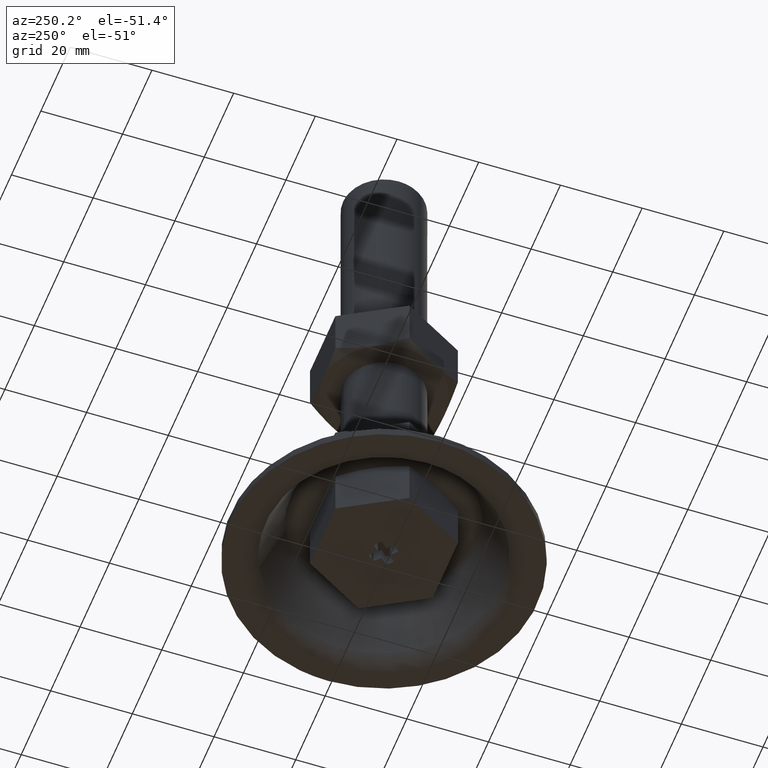
[diagram: clean part render]
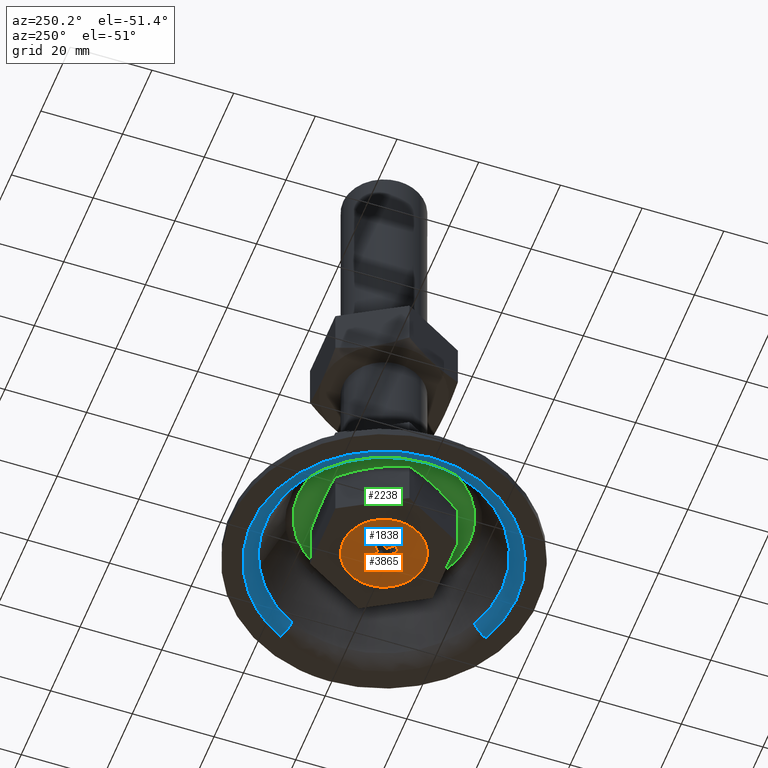
[diagram: same view with three faces highlighted in distinct colors, each labeled with its STEP entity id]
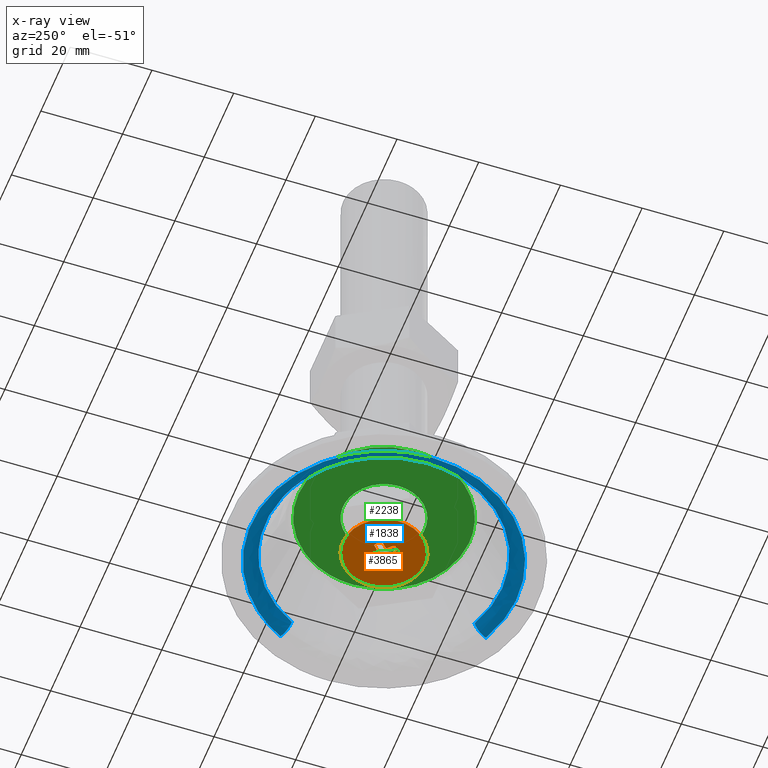
[diagram: x-ray of the same camera — body ghosted, the three highlighted faces saturated]
A machine part, auxiliary view with three faces highlighted in distinct colors.
The next image is the same camera in x-ray (body ghosted, the three faces saturated) — at least one of them is partly hidden behind the body in this view.
Their STEP definitions:

[orange] entity #3865 — the highlighted face is a freeform B-spline surface patch.
#2368=CARTESIAN_POINT('',(-0.087265355132907,-9.999619230640409,3.000000000000226));
#2369=VERTEX_POINT('',#2368);
#2375=CARTESIAN_POINT('',(10.0,0.0,3.000000000000225));
#2376=VERTEX_POINT('',#2375);
#2377=CARTESIAN_POINT('',(-0.087265355132907,-9.999619230640409,3.000000000000225));
#2378=CARTESIAN_POINT('',(-0.043633508356192,-9.999999999999998,3.000000000000226));
#2379=CARTESIAN_POINT('',(0.0,-10.0,3.000000000000225));
#2380=CARTESIAN_POINT('',(10.000000000000002,-10.000000000000002,3.000000000000225));
#2381=CARTESIAN_POINT('',(10.0,0.0,3.000000000000225));
#2389=(BOUNDED_CURVE()B_SPLINE_CURVE(2,(#2377,#2378,#2379,#2380,#2381),.UNSPECIFIED.,.F.,.U.)B_SPLINE_CURVE_WITH_KNOTS((3,2,3),(0.248460105659758,0.250000000000000,0.500000000000000),.UNSPECIFIED.)CURVE()GEOMETRIC_REPRESENTATION_ITEM()RATIONAL_B_SPLINE_CURVE((0.996414028088244,0.998195901560215,1.0,0.707106781186548,1.0))REPRESENTATION_ITEM(''));
#2390=EDGE_CURVE('',#2369,#2376,#2389,.T.);
#2392=CARTESIAN_POINT('',(1.241280020918305,9.922662138240373,3.000000000000226));
#2393=VERTEX_POINT('',#2392);
#2394=CARTESIAN_POINT('',(10.0,0.0,3.000000000000225));
#2395=CARTESIAN_POINT('',(10.0,8.826986001287088,3.000000000000225));
#2396=CARTESIAN_POINT('',(1.241280020918305,9.922662138240373,3.000000000000225));
#2404=(BOUNDED_CURVE()B_SPLINE_CURVE(2,(#2394,#2395,#2396),.UNSPECIFIED.,.F.,.U.)B_SPLINE_CURVE_WITH_KNOTS((3,3),(0.500000000000000,0.728526071025219),.UNSPECIFIED.)CURVE()GEOMETRIC_REPRESENTATION_ITEM()RATIONAL_B_SPLINE_CURVE((1.0,0.732265053898528,0.954005430266801))REPRESENTATION_ITEM(''));
#2405=EDGE_CURVE('',#2376,#2393,#2404,.T.);
#2455=CARTESIAN_POINT('',(-10.0,0.0,3.000000000000225));
#2456=VERTEX_POINT('',#2455);
#2457=CARTESIAN_POINT('',(1.241280020918304,9.922662138240373,3.000000000000226));
#2458=CARTESIAN_POINT('',(0.623049275456359,10.0,3.000000000000225));
#2459=CARTESIAN_POINT('',(0.0,10.0,3.000000000000225));
#2460=CARTESIAN_POINT('',(-10.000000000000002,10.000000000000002,3.000000000000225));
#2461=CARTESIAN_POINT('',(-10.0,0.0,3.000000000000225));
#2469=(BOUNDED_CURVE()B_SPLINE_CURVE(2,(#2457,#2458,#2459,#2460,#2461),.UNSPECIFIED.,.F.,.U.)B_SPLINE_CURVE_WITH_KNOTS((3,2,3),(0.728526071025219,0.750000000000000,1.0),.UNSPECIFIED.)CURVE()GEOMETRIC_REPRESENTATION_ITEM()RATIONAL_B_SPLINE_CURVE((0.954005430266802,0.974841727288020,1.0,0.707106781186548,1.0))REPRESENTATION_ITEM(''));
#2470=EDGE_CURVE('',#2393,#2456,#2469,.T.);
#2472=CARTESIAN_POINT('',(-10.0,0.0,3.000000000000225));
#2473=CARTESIAN_POINT('',(-10.000000000000002,-9.913112105654022,3.000000000000225));
#2474=CARTESIAN_POINT('',(-0.087265355132907,-9.999619230640409,3.000000000000226));
#2482=(BOUNDED_CURVE()B_SPLINE_CURVE(2,(#2472,#2473,#2474),.UNSPECIFIED.,.F.,.U.)B_SPLINE_CURVE_WITH_KNOTS((3,3),(0.0,0.248460105659758),.UNSPECIFIED.)CURVE()GEOMETRIC_REPRESENTATION_ITEM()RATIONAL_B_SPLINE_CURVE((1.0,0.708910879626332,0.996414028088244))REPRESENTATION_ITEM(''));
#2483=EDGE_CURVE('',#2456,#2369,#2482,.T.);
#3320=CARTESIAN_POINT('',(-1.502621668755090,-2.938048352322960,3.000000000000225));
#3321=VERTEX_POINT('',#3320);
#3322=CARTESIAN_POINT('',(-2.938048381164870,-1.502621612361035,3.000000000000225));
#3323=VERTEX_POINT('',#3322);
#3324=CARTESIAN_POINT('',(-1.502621668755093,-2.938048352322960,3.000000000000225));
#3325=CARTESIAN_POINT('',(-2.452332663000536,-2.452332615929498,3.000000000000225));
#3326=CARTESIAN_POINT('',(-2.938048381164871,-1.502621612361036,3.000000000000225));
#3334=(BOUNDED_CURVE()B_SPLINE_CURVE(2,(#3324,#3325,#3326),.UNSPECIFIED.,.F.,.U.)CURVE()GEOMETRIC_REPRESENTATION_ITEM()QUASI_UNIFORM_CURVE()RATIONAL_B_SPLINE_CURVE((1.0,0.951523598537862,1.0))REPRESENTATION_ITEM(''));
#3335=EDGE_CURVE('',#3321,#3323,#3334,.T.);
#3356=CARTESIAN_POINT('',(-0.031022999999990,-1.516942000000030,3.000000000000225));
#3357=VERTEX_POINT('',#3356);
#3358=CARTESIAN_POINT('',(-0.031022999999990,-1.516942000000030,3.000000000000225));
#3359=CARTESIAN_POINT('',(-1.502621668755090,-2.938048352322960,3.000000000000225));
#3360=QUASI_UNIFORM_CURVE('',1,(#3358,#3359),.UNSPECIFIED.,.F.,.U.);
#3361=EDGE_CURVE('',#3357,#3321,#3360,.T.);
#3378=CARTESIAN_POINT('',(0.0,-1.507457000000030,3.000000000000225));
#3379=VERTEX_POINT('',#3378);
#3380=CARTESIAN_POINT('',(0.0,-1.507457000000030,3.000000000000225));
#3381=CARTESIAN_POINT('',(-0.031022999999990,-1.516942000000030,3.000000000000225));
#3382=QUASI_UNIFORM_CURVE('',1,(#3380,#3381),.UNSPECIFIED.,.F.,.U.);
#3383=EDGE_CURVE('',#3379,#3357,#3382,.T.);
#3400=CARTESIAN_POINT('',(0.031023000000019,-1.516942000000030,3.000000000000225));
#3401=VERTEX_POINT('',#3400);
#3402=CARTESIAN_POINT('',(0.031023000000019,-1.516942000000030,3.000000000000225));
#3403=CARTESIAN_POINT('',(0.0,-1.507457000000030,3.000000000000225));
#3404=QUASI_UNIFORM_CURVE('',1,(#3402,#3403),.UNSPECIFIED.,.F.,.U.);
#3405=EDGE_CURVE('',#3401,#3379,#3404,.T.);
#3422=CARTESIAN_POINT('',(1.502621612361030,-2.938048381164870,3.000000000000225));
#3423=VERTEX_POINT('',#3422);
#3424=CARTESIAN_POINT('',(1.502621612361030,-2.938048381164870,3.000000000000225));
#3425=CARTESIAN_POINT('',(0.031023000000019,-1.516942000000030,3.000000000000225));
#3426=QUASI_UNIFORM_CURVE('',1,(#3424,#3425),.UNSPECIFIED.,.F.,.U.);
#3427=EDGE_CURVE('',#3423,#3401,#3426,.T.);
#3453=CARTESIAN_POINT('',(2.938048000000000,-1.502622000000000,3.000000000000225));
#3454=VERTEX_POINT('',#3453);
#3455=CARTESIAN_POINT('',(2.938048000000000,-1.502622000000000,3.000000000000225));
#3456=CARTESIAN_POINT('',(2.452332392051403,-2.452332777499696,3.000000000000225));
#3457=CARTESIAN_POINT('',(1.502621612361031,-2.938048381164874,3.000000000000225));
#3465=(BOUNDED_CURVE()B_SPLINE_CURVE(2,(#3455,#3456,#3457),.UNSPECIFIED.,.F.,.U.)CURVE()GEOMETRIC_REPRESENTATION_ITEM()QUASI_UNIFORM_CURVE()RATIONAL_B_SPLINE_CURVE((1.0,0.951523619757787,1.0))REPRESENTATION_ITEM(''));
#3466=EDGE_CURVE('',#3454,#3423,#3465,.T.);
#3483=CARTESIAN_POINT('',(1.516942000000000,-0.031022999999990,3.000000000000225));
#3484=VERTEX_POINT('',#3483);
#3485=CARTESIAN_POINT('',(1.516942000000000,-0.031022999999990,3.000000000000225));
#3486=CARTESIAN_POINT('',(2.938048000000000,-1.502622000000000,3.000000000000225));
#3487=QUASI_UNIFORM_CURVE('',1,(#3485,#3486),.UNSPECIFIED.,.F.,.U.);
#3488=EDGE_CURVE('',#3484,#3454,#3487,.T.);
#3505=CARTESIAN_POINT('',(1.507457000000000,0.0,3.000000000000225));
#3506=VERTEX_POINT('',#3505);
#3507=CARTESIAN_POINT('',(1.507457000000000,0.0,3.000000000000225));
#3508=CARTESIAN_POINT('',(1.516942000000000,-0.031022999999990,3.000000000000225));
#3509=QUASI_UNIFORM_CURVE('',1,(#3507,#3508),.UNSPECIFIED.,.F.,.U.);
#3510=EDGE_CURVE('',#3506,#3484,#3509,.T.);
#3527=CARTESIAN_POINT('',(1.516942000000000,0.031023000000019,3.000000000000225));
#3528=VERTEX_POINT('',#3527);
#3529=CARTESIAN_POINT('',(1.516942000000000,0.031023000000019,3.000000000000225));
#3530=CARTESIAN_POINT('',(1.507457000000000,0.0,3.000000000000225));
#3531=QUASI_UNIFORM_CURVE('',1,(#3529,#3530),.UNSPECIFIED.,.F.,.U.);
#3532=EDGE_CURVE('',#3528,#3506,#3531,.T.);
#3549=CARTESIAN_POINT('',(2.938048381164870,1.502621612361035,3.000000000000225));
#3550=VERTEX_POINT('',#3549);
#3551=CARTESIAN_POINT('',(2.938048381164870,1.502621612361035,3.000000000000225));
#3552=CARTESIAN_POINT('',(1.516942000000000,0.031023000000019,3.000000000000225));
#3553=QUASI_UNIFORM_CURVE('',1,(#3551,#3552),.UNSPECIFIED.,.F.,.U.);
#3554=EDGE_CURVE('',#3550,#3528,#3553,.T.);
#3580=CARTESIAN_POINT('',(1.502622000000000,2.938048000000000,3.000000000000225));
#3581=VERTEX_POINT('',#3580);
#3582=CARTESIAN_POINT('',(1.502622000000000,2.938048000000000,3.000000000000225));
#3583=CARTESIAN_POINT('',(2.452332777499692,2.452332392051405,3.000000000000225));
#3584=CARTESIAN_POINT('',(2.938048381164871,1.502621612361037,3.000000000000225));
#3592=(BOUNDED_CURVE()B_SPLINE_CURVE(2,(#3582,#3583,#3584),.UNSPECIFIED.,.F.,.U.)CURVE()GEOMETRIC_REPRESENTATION_ITEM()QUASI_UNIFORM_CURVE()RATIONAL_B_SPLINE_CURVE((1.0,0.951523619757787,1.0))REPRESENTATION_ITEM(''));
#3593=EDGE_CURVE('',#3581,#3550,#3592,.T.);
#3610=CARTESIAN_POINT('',(0.031023000000019,1.516942000000000,3.000000000000225));
#3611=VERTEX_POINT('',#3610);
#3612=CARTESIAN_POINT('',(0.031023000000019,1.516942000000000,3.000000000000225));
#3613=CARTESIAN_POINT('',(1.502622000000000,2.938048000000000,3.000000000000225));
#3614=QUASI_UNIFORM_CURVE('',1,(#3612,#3613),.UNSPECIFIED.,.F.,.U.);
#3615=EDGE_CURVE('',#3611,#3581,#3614,.T.);
#3632=CARTESIAN_POINT('',(0.0,1.507457000000000,3.000000000000225));
#3633=VERTEX_POINT('',#3632);
#3634=CARTESIAN_POINT('',(0.0,1.507457000000000,3.000000000000225));
#3635=CARTESIAN_POINT('',(0.031023000000019,1.516942000000000,3.000000000000225));
#3636=QUASI_UNIFORM_CURVE('',1,(#3634,#3635),.UNSPECIFIED.,.F.,.U.);
#3637=EDGE_CURVE('',#3633,#3611,#3636,.T.);
#3654=CARTESIAN_POINT('',(-0.031022999999990,1.516942000000000,3.000000000000225));
#3655=VERTEX_POINT('',#3654);
#3656=CARTESIAN_POINT('',(-0.031022999999990,1.516942000000000,3.000000000000225));
#3657=CARTESIAN_POINT('',(0.0,1.507457000000000,3.000000000000225));
#3658=QUASI_UNIFORM_CURVE('',1,(#3656,#3657),.UNSPECIFIED.,.F.,.U.);
#3659=EDGE_CURVE('',#3655,#3633,#3658,.T.);
#3676=CARTESIAN_POINT('',(-1.502621612361035,2.938048381164870,3.000000000000225));
#3677=VERTEX_POINT('',#3676);
#3678=CARTESIAN_POINT('',(-1.502621612361035,2.938048381164870,3.000000000000225));
#3679=CARTESIAN_POINT('',(-0.031022999999990,1.516942000000000,3.000000000000225));
#3680=QUASI_UNIFORM_CURVE('',1,(#3678,#3679),.UNSPECIFIED.,.F.,.U.);
#3681=EDGE_CURVE('',#3677,#3655,#3680,.T.);
#3707=CARTESIAN_POINT('',(-2.938048000000000,1.502621000000000,3.000000000000225));
#3708=VERTEX_POINT('',#3707);
#3709=CARTESIAN_POINT('',(-2.938048000000000,1.502621000000000,3.000000000000225));
#3710=CARTESIAN_POINT('',(-2.452332829796139,2.452332553621589,3.000000000000226));
#3711=CARTESIAN_POINT('',(-1.502621612361037,2.938048381164871,3.000000000000225));
#3719=(BOUNDED_CURVE()B_SPLINE_CURVE(2,(#3709,#3710,#3711),.UNSPECIFIED.,.F.,.U.)CURVE()GEOMETRIC_REPRESENTATION_ITEM()QUASI_UNIFORM_CURVE()RATIONAL_B_SPLINE_CURVE((1.0,0.951523578266854,1.0))REPRESENTATION_ITEM(''));
#3720=EDGE_CURVE('',#3708,#3677,#3719,.T.);
#3737=CARTESIAN_POINT('',(-1.516942000000000,0.031023000000019,3.000000000000225));
#3738=VERTEX_POINT('',#3737);
#3739=CARTESIAN_POINT('',(-1.516942000000000,0.031023000000019,3.000000000000225));
#3740=CARTESIAN_POINT('',(-2.938048000000000,1.502621000000000,3.000000000000225));
#3741=QUASI_UNIFORM_CURVE('',1,(#3739,#3740),.UNSPECIFIED.,.F.,.U.);
#3742=EDGE_CURVE('',#3738,#3708,#3741,.T.);
#3759=CARTESIAN_POINT('',(-1.507457000000000,0.0,3.000000000000225));
#3760=VERTEX_POINT('',#3759);
#3761=CARTESIAN_POINT('',(-1.507457000000000,0.0,3.000000000000225));
#3762=CARTESIAN_POINT('',(-1.516942000000000,0.031023000000019,3.000000000000225));
#3763=QUASI_UNIFORM_CURVE('',1,(#3761,#3762),.UNSPECIFIED.,.F.,.U.);
#3764=EDGE_CURVE('',#3760,#3738,#3763,.T.);
#3781=CARTESIAN_POINT('',(-1.516942000000000,-0.031022999999990,3.000000000000225));
#3782=VERTEX_POINT('',#3781);
#3783=CARTESIAN_POINT('',(-1.516942000000000,-0.031022999999990,3.000000000000225));
#3784=CARTESIAN_POINT('',(-1.507457000000000,0.0,3.000000000000225));
#3785=QUASI_UNIFORM_CURVE('',1,(#3783,#3784),.UNSPECIFIED.,.F.,.U.);
#3786=EDGE_CURVE('',#3782,#3760,#3785,.T.);
#3803=CARTESIAN_POINT('',(-2.938048381164870,-1.502621612361035,3.000000000000225));
#3804=CARTESIAN_POINT('',(-1.516942000000000,-0.031022999999990,3.000000000000225));
#3805=QUASI_UNIFORM_CURVE('',1,(#3803,#3804),.UNSPECIFIED.,.F.,.U.);
#3806=EDGE_CURVE('',#3323,#3782,#3805,.T.);
#3832=CARTESIAN_POINT('',(-10.998999961236120,10.998295119452409,3.000000000000200));
#3833=CARTESIAN_POINT('',(10.999000497677921,10.998295119452409,3.000000000000200));
#3834=CARTESIAN_POINT('',(-10.998999961236120,-10.998568347144060,3.000000000000200));
#3835=CARTESIAN_POINT('',(10.999000497677921,-10.998568347144060,3.000000000000200));
#3836=B_SPLINE_SURFACE_WITH_KNOTS('',1,1,((#3832,#3834),(#3833,#3835)),.UNSPECIFIED.,.F.,.F.,.U.,(2,2),(2,2),(0.0,21.998000458914039),(0.0,21.996863466596469),.UNSPECIFIED.);
#3837=ORIENTED_EDGE('',*,*,#2470,.F.);
#3838=ORIENTED_EDGE('',*,*,#2405,.F.);
#3839=ORIENTED_EDGE('',*,*,#2390,.F.);
#3840=ORIENTED_EDGE('',*,*,#2483,.F.);
#3841=EDGE_LOOP('',(#3837,#3838,#3839,#3840));
#3842=FACE_OUTER_BOUND('',#3841,.T.);
#3843=ORIENTED_EDGE('',*,*,#3786,.F.);
#3844=ORIENTED_EDGE('',*,*,#3806,.F.);
#3845=ORIENTED_EDGE('',*,*,#3335,.F.);
#3846=ORIENTED_EDGE('',*,*,#3361,.F.);
#3847=ORIENTED_EDGE('',*,*,#3383,.F.);
#3848=ORIENTED_EDGE('',*,*,#3405,.F.);
#3849=ORIENTED_EDGE('',*,*,#3427,.F.);
#3850=ORIENTED_EDGE('',*,*,#3466,.F.);
#3851=ORIENTED_EDGE('',*,*,#3488,.F.);
#3852=ORIENTED_EDGE('',*,*,#3510,.F.);
#3853=ORIENTED_EDGE('',*,*,#3532,.F.);
#3854=ORIENTED_EDGE('',*,*,#3554,.F.);
#3855=ORIENTED_EDGE('',*,*,#3593,.F.);
#3856=ORIENTED_EDGE('',*,*,#3615,.F.);
#3857=ORIENTED_EDGE('',*,*,#3637,.F.);
#3858=ORIENTED_EDGE('',*,*,#3659,.F.);
#3859=ORIENTED_EDGE('',*,*,#3681,.F.);
#3860=ORIENTED_EDGE('',*,*,#3720,.F.);
#3861=ORIENTED_EDGE('',*,*,#3742,.F.);
#3862=ORIENTED_EDGE('',*,*,#3764,.F.);
#3863=EDGE_LOOP('',(#3843,#3844,#3845,#3846,#3847,#3848,#3849,#3850,#3851,#3852,#3853,#3854,#3855,#3856,#3857,#3858,#3859,#3860,#3861,#3862));
#3864=FACE_BOUND('',#3863,.T.);
#3865=ADVANCED_FACE('',(#3842,#3864),#3836,.T.);

[blue] entity #1838 — the highlighted face is a freeform B-spline surface patch.
#956=CARTESIAN_POINT('',(12.959905010484240,25.878573955882899,2.237050468494902));
#957=VERTEX_POINT('',#956);
#963=CARTESIAN_POINT('',(25.704757550471040,13.301322007613750,2.237050468226475));
#964=VERTEX_POINT('',#963);
#965=CARTESIAN_POINT('',(12.959905010484238,25.878573955882896,2.237050468494902));
#966=CARTESIAN_POINT('',(21.377962304956984,21.662838456136893,2.237050468408253));
#967=CARTESIAN_POINT('',(25.704757550471037,13.301322007613747,2.237050468226475));
#975=(BOUNDED_CURVE()B_SPLINE_CURVE(2,(#965,#966,#967),.UNSPECIFIED.,.F.,.U.)B_SPLINE_CURVE_WITH_KNOTS((3,3),(0.326127052925136,0.421825371003050),.UNSPECIFIED.)CURVE()GEOMETRIC_REPRESENTATION_ITEM()RATIONAL_B_SPLINE_CURVE((0.875940413897086,0.832104291764649,0.874103860136127))REPRESENTATION_ITEM(''));
#976=EDGE_CURVE('',#957,#964,#975,.T.);
#993=CARTESIAN_POINT('',(11.809436057714841,-26.423416658250780,2.237050467591287));
#994=VERTEX_POINT('',#993);
#1008=CARTESIAN_POINT('',(-28.942351802662198,0.0,2.237050468566510));
#1009=VERTEX_POINT('',#1008);
#1010=CARTESIAN_POINT('',(11.809436057714843,-26.423416658250780,2.237050467591286));
#1011=CARTESIAN_POINT('',(6.173360588563976,-28.942351802662202,2.237050468566510));
#1012=CARTESIAN_POINT('',(0.0,-28.942351802662198,2.237050468566510));
#1013=CARTESIAN_POINT('',(-28.942351802662202,-28.942351802662202,2.237050468566510));
#1014=CARTESIAN_POINT('',(-28.942351802662198,0.0,2.237050468566510));
#1022=(BOUNDED_CURVE()B_SPLINE_CURVE(2,(#1010,#1011,#1012,#1013,#1014),.UNSPECIFIED.,.F.,.U.)B_SPLINE_CURVE_WITH_KNOTS((3,2,3),(0.680709483577362,0.750000000000000,1.0),.UNSPECIFIED.)CURVE()GEOMETRIC_REPRESENTATION_ITEM()RATIONAL_B_SPLINE_CURVE((0.882641638331817,0.918821110446908,1.0,0.707106781186548,1.0))REPRESENTATION_ITEM(''));
#1023=EDGE_CURVE('',#994,#1009,#1022,.T.);
#1025=CARTESIAN_POINT('',(-8.220072037613289,27.750498081360188,2.237050461597667));
#1026=VERTEX_POINT('',#1025);
#1027=CARTESIAN_POINT('',(-28.942351802662198,0.0,2.237050468566510));
#1028=CARTESIAN_POINT('',(-28.942351802662198,21.612279144103162,2.237050468566510));
#1029=CARTESIAN_POINT('',(-8.220072037613289,27.750498081360185,2.237050461597668));
#1037=(BOUNDED_CURVE()B_SPLINE_CURVE(2,(#1027,#1028,#1029),.UNSPECIFIED.,.F.,.U.)B_SPLINE_CURVE_WITH_KNOTS((3,3),(0.0,0.201641516916534),.UNSPECIFIED.)CURVE()GEOMETRIC_REPRESENTATION_ITEM()RATIONAL_B_SPLINE_CURVE((1.0,0.763762268255557,0.908607213166079))REPRESENTATION_ITEM(''));
#1038=EDGE_CURVE('',#1009,#1026,#1037,.T.);
#1140=CARTESIAN_POINT('',(-8.220072037613289,27.750498081360185,2.237050461597668));
#1141=CARTESIAN_POINT('',(-4.196441308146185,28.942351802662206,2.237050468566510));
#1142=CARTESIAN_POINT('',(0.0,28.942351802662198,2.237050468566510));
#1143=CARTESIAN_POINT('',(6.842097701799586,28.942351802662202,2.237050468566509));
#1144=CARTESIAN_POINT('',(12.959905010484237,25.878573955882892,2.237050468494902));
#1152=(BOUNDED_CURVE()B_SPLINE_CURVE(2,(#1140,#1141,#1142,#1143,#1144),.UNSPECIFIED.,.F.,.U.)B_SPLINE_CURVE_WITH_KNOTS((3,2,3),(0.201641516916534,0.250000000000000,0.326127052925136),.UNSPECIFIED.)CURVE()GEOMETRIC_REPRESENTATION_ITEM()RATIONAL_B_SPLINE_CURVE((0.908607213166079,0.943344512930990,1.0,0.910811609719899,0.875940413897086))REPRESENTATION_ITEM(''));
#1153=EDGE_CURVE('',#1026,#957,#1152,.T.);
#1741=CARTESIAN_POINT('',(13.360122058931159,-29.893050781160223,0.005508355514710));
#1742=CARTESIAN_POINT('',(-14.869483275386079,-42.509728005006110,0.005508355514710));
#1743=CARTESIAN_POINT('',(-29.080025218520500,-15.047906157494939,0.005508355514710));
#1744=CARTESIAN_POINT('',(-44.127931376015439,14.032119061025560,0.005508355514710));
#1745=CARTESIAN_POINT('',(-15.047906157494939,29.080025218520500,0.005508355514710));
#1746=CARTESIAN_POINT('',(14.032119061025556,44.127931376015439,0.005508355514710));
#1747=CARTESIAN_POINT('',(29.080025218520500,15.047906157494939,0.005508355514710));
#1748=CARTESIAN_POINT('',(12.221916583652151,-27.346334971092841,-0.141036379579506));
#1749=CARTESIAN_POINT('',(-13.602688914978263,-38.888143939045086,-0.141036379579505));
#1750=CARTESIAN_POINT('',(-26.602574505198223,-13.765911194844453,-0.141036379579506));
#1751=CARTESIAN_POINT('',(-40.368485700042669,12.836663310353774,-0.141036379579506));
#1752=CARTESIAN_POINT('',(-13.765911194844453,26.602574505198223,-0.141036379579506));
#1753=CARTESIAN_POINT('',(12.836663310353773,40.368485700042669,-0.141036379579506));
#1754=CARTESIAN_POINT('',(26.602574505198223,13.765911194844453,-0.141036379579506));
#1755=CARTESIAN_POINT('',(11.773801071749741,-26.343683970298308,2.427354544556524));
#1756=CARTESIAN_POINT('',(-13.103947505260404,-37.462313513112626,2.427354544556523));
#1757=CARTESIAN_POINT('',(-25.627193417401873,-13.261185254386630,2.427354544556523));
#1758=CARTESIAN_POINT('',(-38.888378671788516,12.366008163015243,2.427354544556525));
#1759=CARTESIAN_POINT('',(-13.261185254386630,25.627193417401873,2.427354544556523));
#1760=CARTESIAN_POINT('',(12.366008163015241,38.888378671788516,2.427354544556525));
#1761=CARTESIAN_POINT('',(25.627193417401873,13.261185254386639,2.427354544556523));
#1769=(BOUNDED_SURFACE()B_SPLINE_SURFACE(2,2,((#1741,#1748,#1755),(#1742,#1749,#1756),(#1743,#1750,#1757),(#1744,#1751,#1758),(#1745,#1752,#1759),(#1746,#1753,#1760),(#1747,#1754,#1761)),.UNSPECIFIED.,.F.,.F.,.U.)B_SPLINE_SURFACE_WITH_KNOTS((3,2,2,3),(3,3),(0.0,52.079957855682849,106.329913955352500,160.579870055022100),(0.0,5.033719472252813),.UNSPECIFIED.)GEOMETRIC_REPRESENTATION_ITEM()RATIONAL_B_SPLINE_SURFACE(((0.898933571987331,0.737985855779478,0.901312929656294),(0.661043326759624,0.542688181205107,0.662793020572444),(0.919619680268002,0.754968262264206,0.922053791315759),(0.650269312030109,0.533843177827644,0.651990488458139),(0.919619680268002,0.754968262264206,0.922053791315759),(0.650269312030109,0.533843177827644,0.651990488458139),(0.919619680268002,0.754968262264206,0.922053791315759)))REPRESENTATION_ITEM('')SURFACE());
#1770=ORIENTED_EDGE('',*,*,#1023,.F.);
#1771=CARTESIAN_POINT('',(13.274496828831539,-29.701465753393460,6.272560E-016));
#1772=VERTEX_POINT('',#1771);
#1773=CARTESIAN_POINT('',(13.274496828831541,-29.701465753393460,6.272560E-016));
#1774=CARTESIAN_POINT('',(12.257614232263602,-27.426207865816647,2.246955E-009));
#1775=CARTESIAN_POINT('',(11.809436057714841,-26.423416658250787,2.237050467591287));
#1783=(BOUNDED_CURVE()B_SPLINE_CURVE(2,(#1773,#1774,#1775),.UNSPECIFIED.,.F.,.U.)B_SPLINE_CURVE_WITH_KNOTS((3,3),(-1.645059919364453,-0.344443061153596),.UNSPECIFIED.)CURVE()GEOMETRIC_REPRESENTATION_ITEM()RATIONAL_B_SPLINE_CURVE((0.884983933262238,0.752043508425035,0.887147264431271))REPRESENTATION_ITEM(''));
#1784=EDGE_CURVE('',#1772,#994,#1783,.T.);
#1785=ORIENTED_EDGE('',*,*,#1784,.F.);
#1786=CARTESIAN_POINT('',(-32.532896183340213,0.0,0.0));
#1787=VERTEX_POINT('',#1786);
#1788=CARTESIAN_POINT('',(13.274496828831534,-29.701465753393467,6.272560E-016));
#1789=CARTESIAN_POINT('',(6.939218364190379,-32.532896183340206,0.0));
#1790=CARTESIAN_POINT('',(0.0,-32.532896183340213,0.0));
#1791=CARTESIAN_POINT('',(-32.532896183340213,-32.532896183340213,0.0));
#1792=CARTESIAN_POINT('',(-32.532896183340213,0.0,0.0));
#1800=(BOUNDED_CURVE()B_SPLINE_CURVE(2,(#1788,#1789,#1790,#1791,#1792),.UNSPECIFIED.,.F.,.U.)B_SPLINE_CURVE_WITH_KNOTS((3,2,3),(0.680709483576786,0.750000000000000,1.0),.UNSPECIFIED.)CURVE()GEOMETRIC_REPRESENTATION_ITEM()RATIONAL_B_SPLINE_CURVE((0.882641638331215,0.918821110446234,1.0,0.707106781186547,1.0))REPRESENTATION_ITEM(''));
#1801=EDGE_CURVE('',#1772,#1787,#1800,.T.);
#1802=ORIENTED_EDGE('',*,*,#1801,.T.);
#1803=CARTESIAN_POINT('',(28.893650885626290,14.951463893438650,6.131464E-016));
#1804=VERTEX_POINT('',#1803);
#1805=CARTESIAN_POINT('',(-32.532896183340213,0.0,0.0));
#1806=CARTESIAN_POINT('',(-32.532896183340213,32.532896183340213,0.0));
#1807=CARTESIAN_POINT('',(0.0,32.532896183340213,0.0));
#1808=CARTESIAN_POINT('',(19.795868431308509,32.532896183340206,0.0));
#1809=CARTESIAN_POINT('',(28.893650885626283,14.951463893438650,6.131464E-016));
#1817=(BOUNDED_CURVE()B_SPLINE_CURVE(2,(#1805,#1806,#1807,#1808,#1809),.UNSPECIFIED.,.F.,.U.)B_SPLINE_CURVE_WITH_KNOTS((3,2,3),(0.0,0.250000000000000,0.421825371002993),.UNSPECIFIED.)CURVE()GEOMETRIC_REPRESENTATION_ITEM()RATIONAL_B_SPLINE_CURVE((1.0,0.707106781186547,1.0,0.798694056052471,0.874103860136077))REPRESENTATION_ITEM(''));
#1818=EDGE_CURVE('',#1787,#1804,#1817,.T.);
#1819=ORIENTED_EDGE('',*,*,#1818,.T.);
#1820=CARTESIAN_POINT('',(28.893650885626286,14.951463893438643,6.131464E-016));
#1821=CARTESIAN_POINT('',(26.680275031932048,13.806118527055904,3.588732E-010));
#1822=CARTESIAN_POINT('',(25.704757550471037,13.301322007613747,2.237050468226475));
#1830=(BOUNDED_CURVE()B_SPLINE_CURVE(2,(#1820,#1821,#1822),.UNSPECIFIED.,.F.,.U.)B_SPLINE_CURVE_WITH_KNOTS((3,3),(-1.645059920295007,-0.344443060717956),.UNSPECIFIED.)CURVE()GEOMETRIC_REPRESENTATION_ITEM()RATIONAL_B_SPLINE_CURVE((0.905349034995599,0.769349407105425,0.907562148275897))REPRESENTATION_ITEM(''));
#1831=EDGE_CURVE('',#1804,#964,#1830,.T.);
#1832=ORIENTED_EDGE('',*,*,#1831,.T.);
#1833=ORIENTED_EDGE('',*,*,#976,.F.);
#1834=ORIENTED_EDGE('',*,*,#1153,.F.);
#1835=ORIENTED_EDGE('',*,*,#1038,.F.);
#1836=EDGE_LOOP('',(#1770,#1785,#1802,#1819,#1832,#1833,#1834,#1835));
#1837=FACE_OUTER_BOUND('',#1836,.T.);
#1838=ADVANCED_FACE('',(#1837),#1769,.T.);

[green] entity #2238 — the highlighted face is a freeform B-spline surface patch.
#768=CARTESIAN_POINT('',(-1.180342346617756,9.930095263630699,16.0));
#769=VERTEX_POINT('',#768);
#775=CARTESIAN_POINT('',(10.0,0.0,16.0));
#776=VERTEX_POINT('',#775);
#777=CARTESIAN_POINT('',(-1.180342346617757,9.930095263630699,16.000000000000007));
#778=CARTESIAN_POINT('',(-0.592241196569803,10.0,16.000000000000004));
#779=CARTESIAN_POINT('',(0.0,10.0,16.0));
#780=CARTESIAN_POINT('',(10.000000000000002,10.000000000000002,15.999999999999998));
#781=CARTESIAN_POINT('',(10.0,0.0,16.0));
#789=(BOUNDED_CURVE()B_SPLINE_CURVE(2,(#777,#778,#779,#780,#781),.UNSPECIFIED.,.F.,.U.)B_SPLINE_CURVE_WITH_KNOTS((3,2,3),(0.229562473513936,0.250000000000000,0.500000000000000),.UNSPECIFIED.)CURVE()GEOMETRIC_REPRESENTATION_ITEM()RATIONAL_B_SPLINE_CURVE((0.956026754184538,0.976055948331647,1.0,0.707106781186548,1.0))REPRESENTATION_ITEM(''));
#790=EDGE_CURVE('',#769,#776,#789,.T.);
#792=CARTESIAN_POINT('',(0.610485395425955,-9.981347984213935,16.0));
#793=VERTEX_POINT('',#792);
#794=CARTESIAN_POINT('',(10.0,0.0,16.0));
#795=CARTESIAN_POINT('',(10.0,-9.407060668910859,16.000000000000004));
#796=CARTESIAN_POINT('',(0.610485395425955,-9.981347984213935,15.999999999999998));
#804=(BOUNDED_CURVE()B_SPLINE_CURVE(2,(#794,#795,#796),.UNSPECIFIED.,.F.,.U.)B_SPLINE_CURVE_WITH_KNOTS((3,3),(0.500000000000000,0.739332962239294),.UNSPECIFIED.)CURVE()GEOMETRIC_REPRESENTATION_ITEM()RATIONAL_B_SPLINE_CURVE((1.0,0.719603993286299,0.976072041667470))REPRESENTATION_ITEM(''));
#805=EDGE_CURVE('',#776,#793,#804,.T.);
#879=CARTESIAN_POINT('',(-10.0,0.0,16.0));
#880=VERTEX_POINT('',#879);
#881=CARTESIAN_POINT('',(0.610485395425955,-9.981347984213935,16.0));
#882=CARTESIAN_POINT('',(0.305527633063491,-10.000000000000002,16.000000000000004));
#883=CARTESIAN_POINT('',(0.0,-10.0,16.0));
#884=CARTESIAN_POINT('',(-10.000000000000002,-10.000000000000002,15.999999999999998));
#885=CARTESIAN_POINT('',(-10.0,0.0,16.0));
#893=(BOUNDED_CURVE()B_SPLINE_CURVE(2,(#881,#882,#883,#884,#885),.UNSPECIFIED.,.F.,.U.)B_SPLINE_CURVE_WITH_KNOTS((3,2,3),(0.739332962239293,0.750000000000000,1.0),.UNSPECIFIED.)CURVE()GEOMETRIC_REPRESENTATION_ITEM()RATIONAL_B_SPLINE_CURVE((0.976072041667468,0.987502787900247,1.0,0.707106781186548,1.0))REPRESENTATION_ITEM(''));
#894=EDGE_CURVE('',#793,#880,#893,.T.);
#896=CARTESIAN_POINT('',(-10.0,0.0,16.0));
#897=CARTESIAN_POINT('',(-10.0,8.881745259423289,16.000000000000004));
#898=CARTESIAN_POINT('',(-1.180342346617757,9.930095263630699,15.999999999999998));
#906=(BOUNDED_CURVE()B_SPLINE_CURVE(2,(#896,#897,#898),.UNSPECIFIED.,.F.,.U.)B_SPLINE_CURVE_WITH_KNOTS((3,3),(0.0,0.229562473513936),.UNSPECIFIED.)CURVE()GEOMETRIC_REPRESENTATION_ITEM()RATIONAL_B_SPLINE_CURVE((1.0,0.731050832854901,0.956026754184538))REPRESENTATION_ITEM(''));
#907=EDGE_CURVE('',#880,#769,#906,.T.);
#1620=CARTESIAN_POINT('',(9.388559230290817,-18.715872610611950,16.000000000000099));
#1621=VERTEX_POINT('',#1620);
#1622=CARTESIAN_POINT('',(-20.938694608125552,0.0,16.0));
#1623=VERTEX_POINT('',#1622);
#1624=CARTESIAN_POINT('',(9.388559230290817,-18.715872610611946,16.000000000000096));
#1625=CARTESIAN_POINT('',(4.957415710470114,-20.938694608125548,15.999999999999996));
#1626=CARTESIAN_POINT('',(0.0,-20.938694608125552,16.0));
#1627=CARTESIAN_POINT('',(-20.938694608125555,-20.938694608125555,15.999999999999998));
#1628=CARTESIAN_POINT('',(-20.938694608125552,0.0,16.0));
#1636=(BOUNDED_CURVE()B_SPLINE_CURVE(2,(#1624,#1625,#1626,#1627,#1628),.UNSPECIFIED.,.F.,.U.)B_SPLINE_CURVE_WITH_KNOTS((3,2,3),(0.673769062114933,0.750000000000000,1.0),.UNSPECIFIED.)CURVE()GEOMETRIC_REPRESENTATION_ITEM()RATIONAL_B_SPLINE_CURVE((0.875845342762002,0.910689900918697,1.0,0.707106781186548,1.0))REPRESENTATION_ITEM(''));
#1637=EDGE_CURVE('',#1621,#1623,#1636,.T.);
#1656=CARTESIAN_POINT('',(18.715872611067891,9.388559230536515,16.000000000000099));
#1657=VERTEX_POINT('',#1656);
#1671=CARTESIAN_POINT('',(-20.938694608125552,0.0,16.0));
#1672=CARTESIAN_POINT('',(-20.938694608125555,20.938694608125555,15.999999999999998));
#1673=CARTESIAN_POINT('',(0.0,20.938694608125552,16.0));
#1674=CARTESIAN_POINT('',(12.921906578551091,20.938694608125555,15.999999999999995));
#1675=CARTESIAN_POINT('',(18.715872611067894,9.388559230536515,16.000000000000096));
#1683=(BOUNDED_CURVE()B_SPLINE_CURVE(2,(#1671,#1672,#1673,#1674,#1675),.UNSPECIFIED.,.F.,.U.)B_SPLINE_CURVE_WITH_KNOTS((3,2,3),(0.0,0.250000000000000,0.423769062114708),.UNSPECIFIED.)CURVE()GEOMETRIC_REPRESENTATION_ITEM()RATIONAL_B_SPLINE_CURVE((1.0,0.707106781186548,1.0,0.796416880268113,0.875845342761797))REPRESENTATION_ITEM(''));
#1684=EDGE_CURVE('',#1623,#1657,#1683,.T.);
#1706=CARTESIAN_POINT('',(20.938694608125552,0.0,16.0));
#1707=VERTEX_POINT('',#1706);
#1708=CARTESIAN_POINT('',(20.938694608125552,0.0,16.0));
#1709=CARTESIAN_POINT('',(20.938694608125552,-12.921906578572012,15.999999999999995));
#1710=CARTESIAN_POINT('',(9.388559230290817,-18.715872610611942,16.000000000000103));
#1718=(BOUNDED_CURVE()B_SPLINE_CURVE(2,(#1708,#1709,#1710),.UNSPECIFIED.,.F.,.U.)B_SPLINE_CURVE_WITH_KNOTS((3,3),(0.500000000000000,0.673769062114932),.UNSPECIFIED.)CURVE()GEOMETRIC_REPRESENTATION_ITEM()RATIONAL_B_SPLINE_CURVE((1.0,0.796416880267851,0.875845342762002))REPRESENTATION_ITEM(''));
#1719=EDGE_CURVE('',#1707,#1621,#1718,.T.);
#1721=CARTESIAN_POINT('',(18.715872611067898,9.388559230536515,16.000000000000103));
#1722=CARTESIAN_POINT('',(20.938694608125555,4.957415710486141,16.000000000000007));
#1723=CARTESIAN_POINT('',(20.938694608125552,0.0,16.0));
#1731=(BOUNDED_CURVE()B_SPLINE_CURVE(2,(#1721,#1722,#1723),.UNSPECIFIED.,.F.,.U.)B_SPLINE_CURVE_WITH_KNOTS((3,3),(0.423769062114708,0.500000000000000),.UNSPECIFIED.)CURVE()GEOMETRIC_REPRESENTATION_ITEM()RATIONAL_B_SPLINE_CURVE((0.875845342761797,0.910689900918434,1.0))REPRESENTATION_ITEM(''));
#1732=EDGE_CURVE('',#1657,#1707,#1731,.T.);
#2221=CARTESIAN_POINT('',(23.030469575580369,-23.028712980552189,16.0));
#2222=CARTESIAN_POINT('',(-23.030468077928219,-23.028712980552189,16.0));
#2223=CARTESIAN_POINT('',(23.030469575580369,23.016811288873029,16.0));
#2224=CARTESIAN_POINT('',(-23.030468077928219,23.016811288873029,16.0));
#2225=B_SPLINE_SURFACE_WITH_KNOTS('',1,1,((#2221,#2223),(#2222,#2224)),.UNSPECIFIED.,.F.,.F.,.U.,(2,2),(2,2),(0.0,46.060937653508589),(0.0,46.045524269425222),.UNSPECIFIED.);
#2226=ORIENTED_EDGE('',*,*,#1684,.T.);
#2227=ORIENTED_EDGE('',*,*,#1732,.T.);
#2228=ORIENTED_EDGE('',*,*,#1719,.T.);
#2229=ORIENTED_EDGE('',*,*,#1637,.T.);
#2230=EDGE_LOOP('',(#2226,#2227,#2228,#2229));
#2231=FACE_OUTER_BOUND('',#2230,.T.);
#2232=ORIENTED_EDGE('',*,*,#805,.F.);
#2233=ORIENTED_EDGE('',*,*,#790,.F.);
#2234=ORIENTED_EDGE('',*,*,#907,.F.);
#2235=ORIENTED_EDGE('',*,*,#894,.F.);
#2236=EDGE_LOOP('',(#2232,#2233,#2234,#2235));
#2237=FACE_BOUND('',#2236,.T.);
#2238=ADVANCED_FACE('',(#2231,#2237),#2225,.T.);